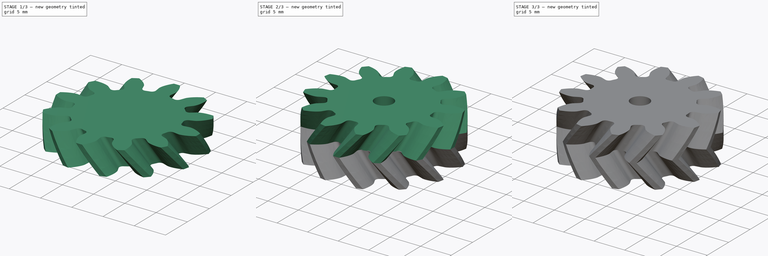
[diagram: build sequence overview — one tinted view per stage of 3, left to right]
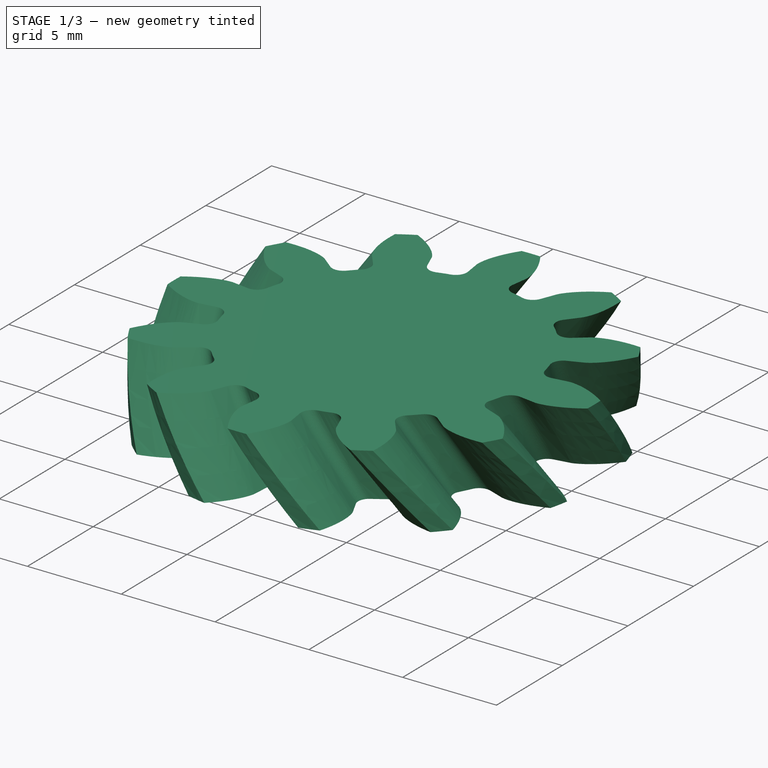
[diagram: stage 1 of 3 — iso view after this stage's code; geometry added in this stage tinted green]
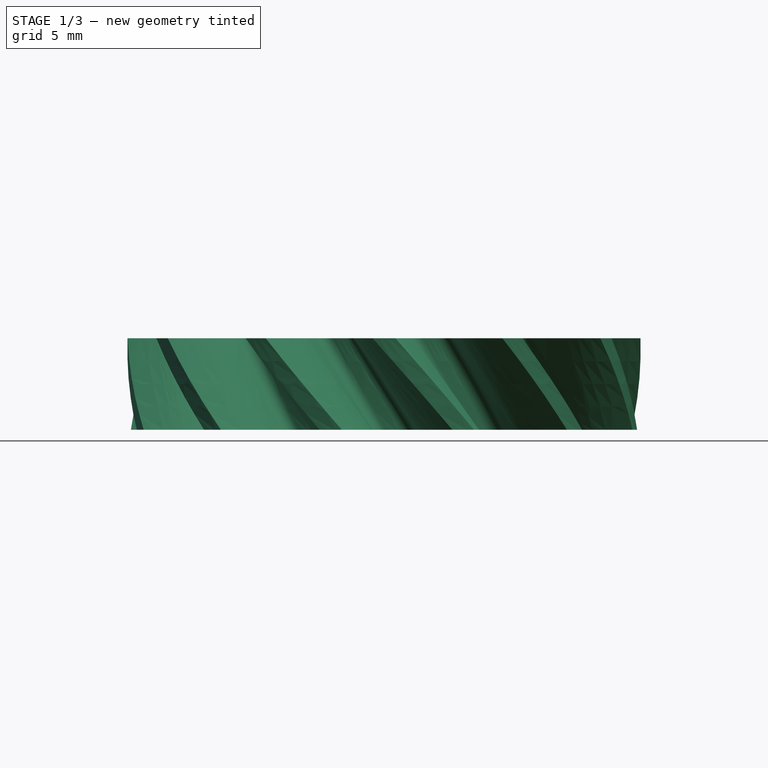
[diagram: stage 1 of 3 — front view after this stage's code; geometry added in this stage tinted green]
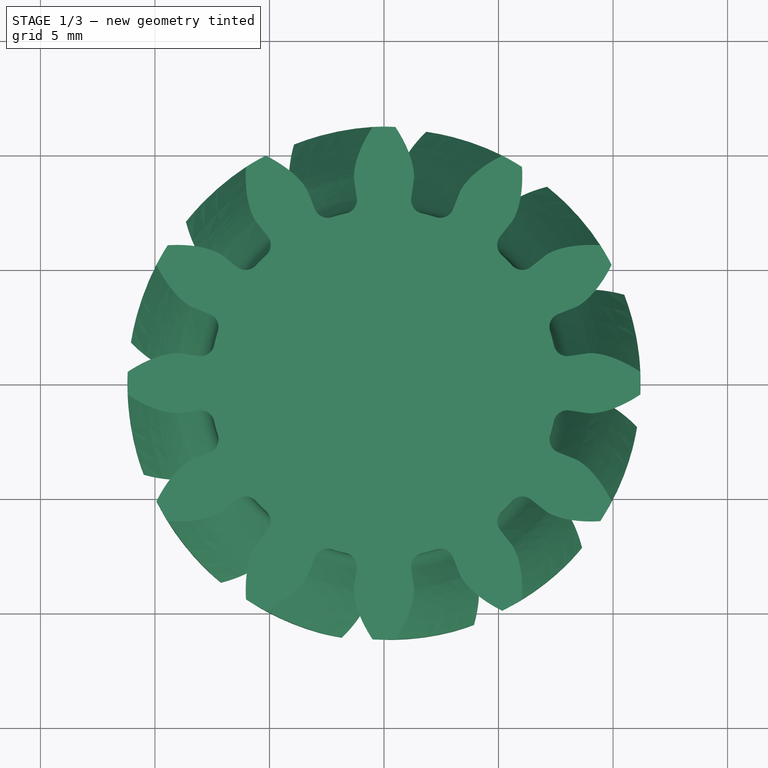
[diagram: stage 1 of 3 — top view after this stage's code; geometry added in this stage tinted green]
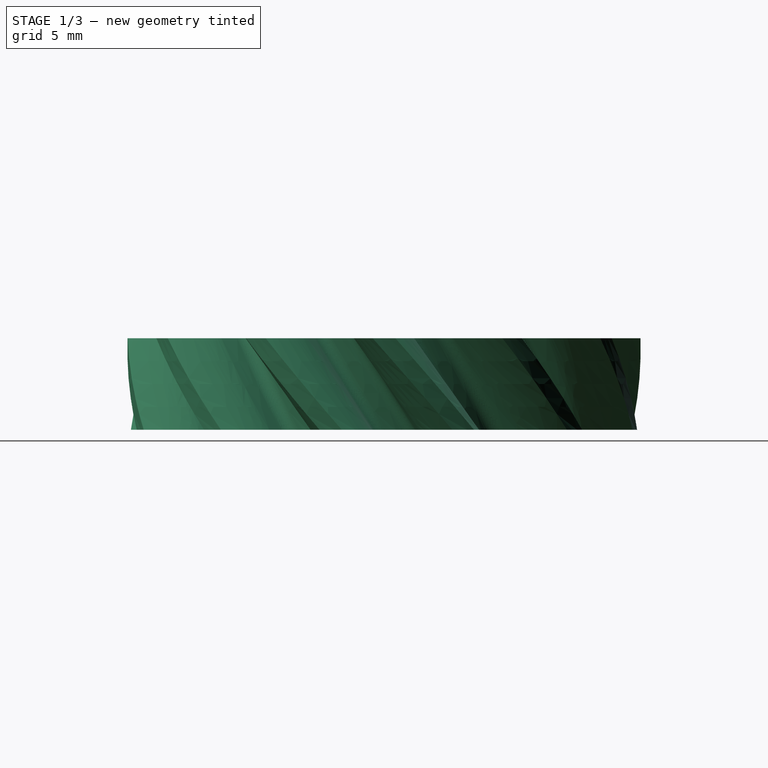
[diagram: stage 1 of 3 — right view after this stage's code; geometry added in this stage tinted green]
FCSTD DOCUMENT  (FreeCAD 0.16R6703 (Git))
Label: Chevron Gear Servo 1mm 12th
License: FreeArt
LicenseURL: http://artlibre.org/licence/lal
objects: Part::Part2DObjectPython×5, Sketcher::SketchObject×3, PartDesign::Pocket×3, Part::Loft×1, Part::Mirroring×1, Part::Fuse×1
note: 17 computed .brp shape members not serialized (recipe doc carries the construction recipe); baked Part::Feature solids carry a one-line shape summary decoded from their .brp

FEATURE [Part::Part2DObjectPython] InvoluteGear  # Draft 2D object (typed FeaturePython)
  ExternalGear = true
  HighPrecision = true
  Modules = 1.6
  NumberOfTeeth = 12
  PressureAngle = 20
FEATURE [Part::Part2DObjectPython] Clone2D  label="Clone of InvoluteGear (2D)"  # Draft 2D object (typed FeaturePython)
  Objects = -> [InvoluteGear]
  Placement = pos=(0,0,1) rot=(0,0,1;0.07854rad)
  Scale = (1,1,1)
FEATURE [Part::Part2DObjectPython] Clone2D001  label="Clone of InvoluteGear (2D)001"  # Draft 2D object (typed FeaturePython)
  Objects = -> [InvoluteGear]
  Placement = pos=(0,0,2) rot=(0,0,1;0.15708rad)
  Scale = (1,1,1)
FEATURE [Part::Part2DObjectPython] Clone2D002  label="Clone of InvoluteGear (2D)002"  # Draft 2D object (typed FeaturePython)
  Objects = -> [InvoluteGear]
  Placement = pos=(0,0,3) rot=(0,0,1;0.235619rad)
  Scale = (1,1,1)
FEATURE [Part::Part2DObjectPython] Clone2D003  label="Clone of InvoluteGear (2D)003"  # Draft 2D object (typed FeaturePython)
  Objects = -> [InvoluteGear]
  Placement = pos=(0,0,4) rot=(0,0,1;0.314159rad)
  Scale = (1,1,1)
FEATURE [Part::Loft] Loft
  Closed = false
  Ruled = false
  Sections = -> [InvoluteGear,Clone2D,Clone2D001,Clone2D002,Clone2D003]
  Solid = true
FEATURE [Part::Mirroring] Part__Mirroring  label="Loft (Mirror #1)"
  Base = (0,0,0)
  Normal = (0,0,1)
  Source = -> Loft
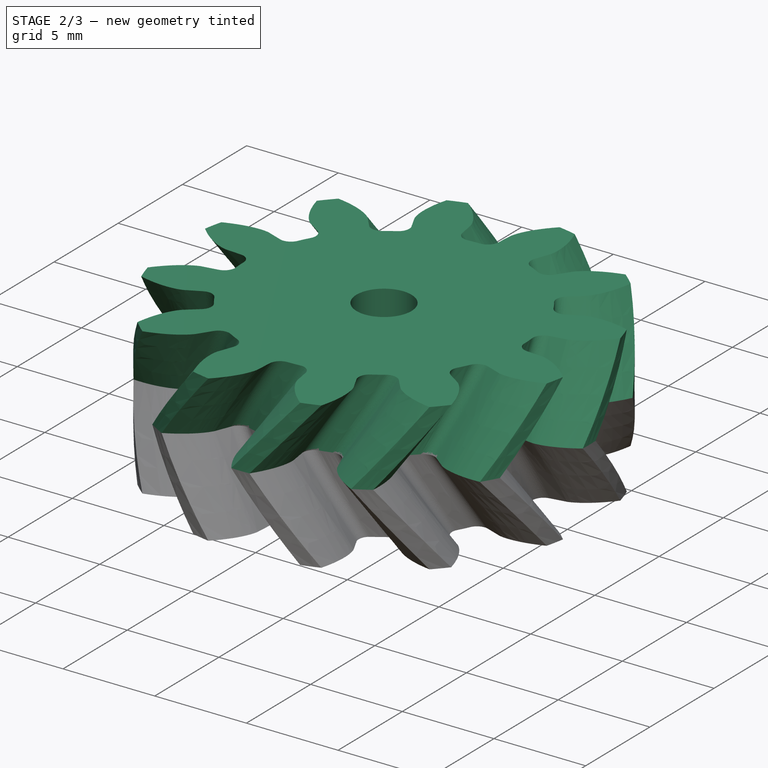
[diagram: stage 2 of 3 — iso view after this stage's code; geometry added in this stage tinted green]
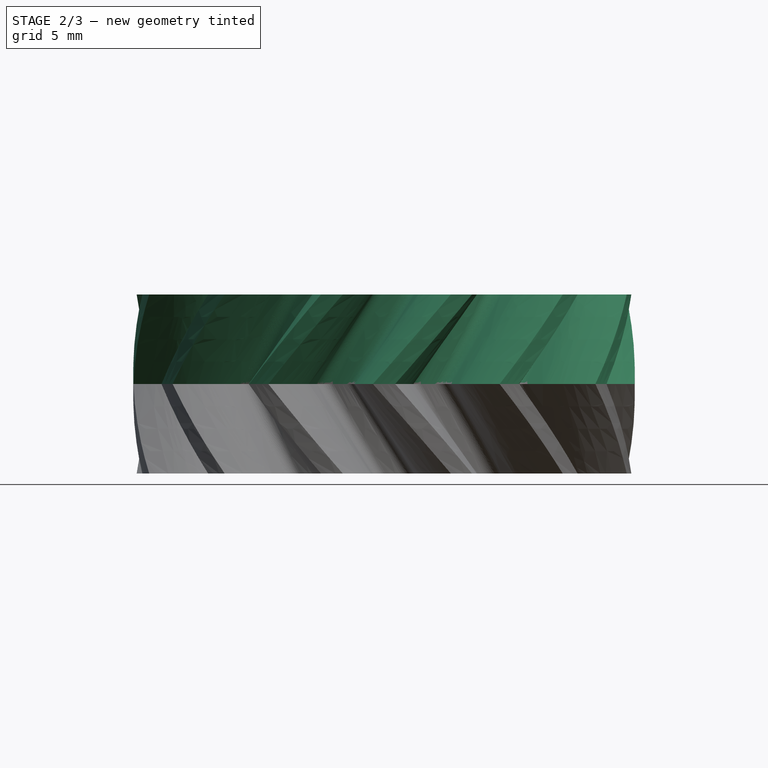
[diagram: stage 2 of 3 — front view after this stage's code; geometry added in this stage tinted green]
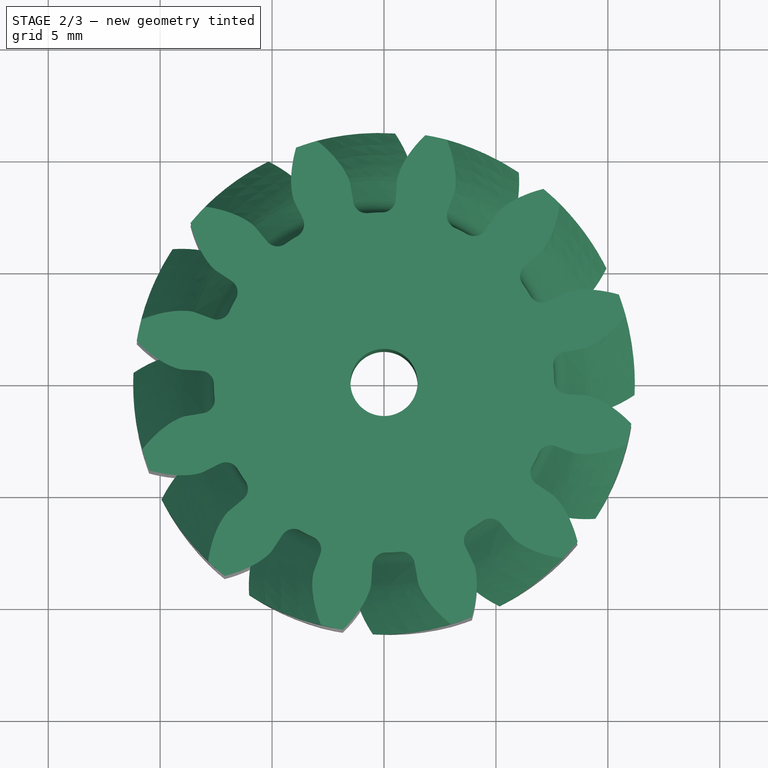
[diagram: stage 2 of 3 — top view after this stage's code; geometry added in this stage tinted green]
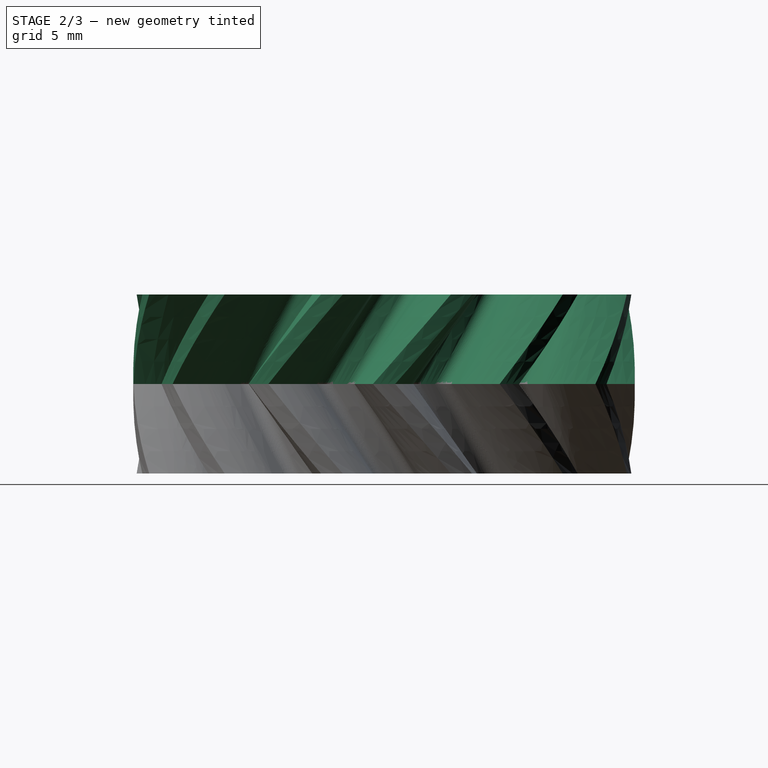
[diagram: stage 2 of 3 — right view after this stage's code; geometry added in this stage tinted green]
FEATURE [Sketcher::SketchObject] Sketch
  Placement = pos=(0,0,4) rot=(0,0,1;0rad)
  Support = -> Loft [Face122]
  sketch-geometry (1):
    g0: Circle CenterX=0 CenterY=0 CenterZ=0 NormalX=0 NormalY=0 NormalZ=1 Radius=1.5
  constraints (2):
    c: Coincident(g0,g-1)
    c: Radius(g0) = 1.5
FEATURE [PartDesign::Pocket] Pocket
  Length = 5
  Sketch = -> Sketch
  Type = 1
FEATURE [Sketcher::SketchObject] Sketch001
  Placement = pos=(0,0,-4) rot=(1,0,0;3.14159rad)
  Support = -> Part__Mirroring [Face122]
  sketch-geometry (1):
    g0: Circle CenterX=0 CenterY=0 CenterZ=0 NormalX=0 NormalY=0 NormalZ=1 Radius=1.5
  constraints (2):
    c: Coincident(g0,g-1)
    c: Radius(g0) = 1.5
FEATURE [PartDesign::Pocket] Pocket001
  Length = 5
  Sketch = -> Sketch001
  Type = 1
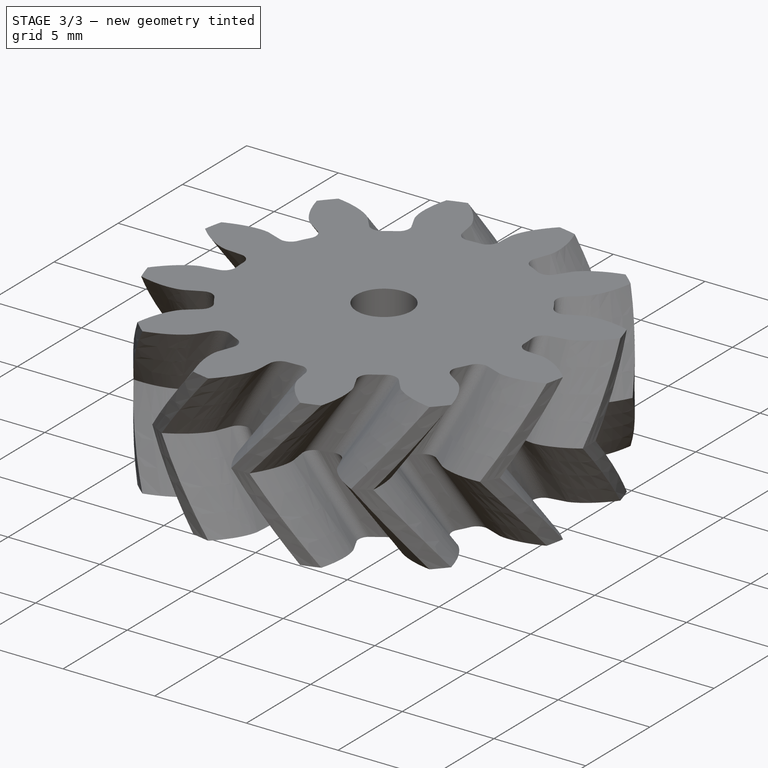
[diagram: stage 3 of 3 — iso view after this stage's code; geometry added in this stage tinted green]
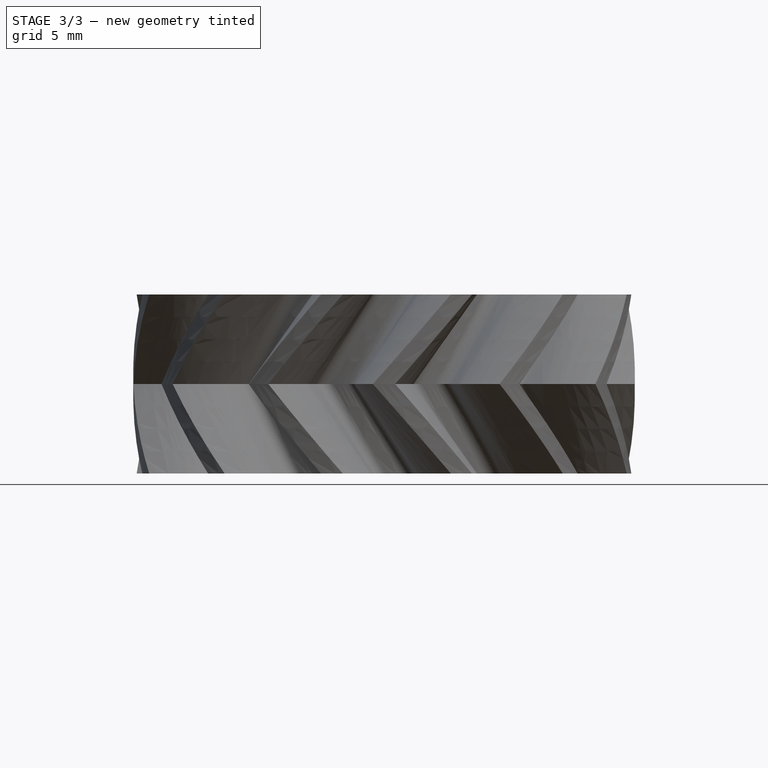
[diagram: stage 3 of 3 — front view after this stage's code; geometry added in this stage tinted green]
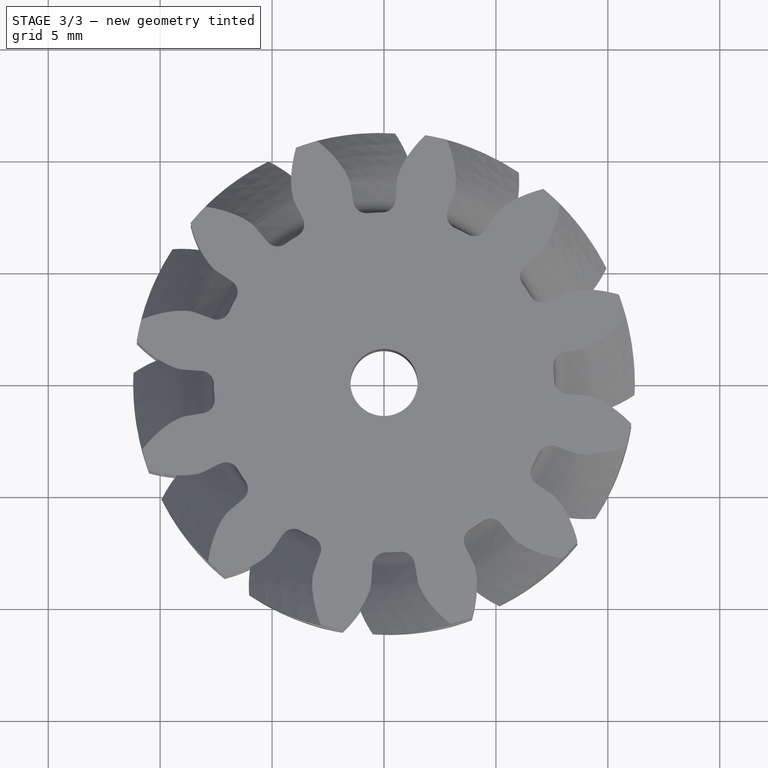
[diagram: stage 3 of 3 — top view after this stage's code; geometry added in this stage tinted green]
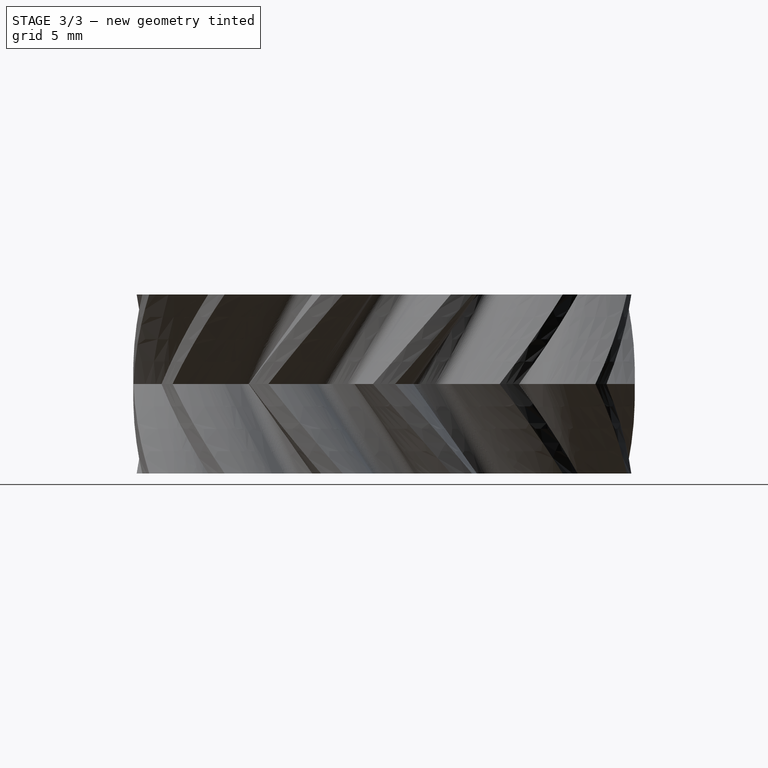
[diagram: stage 3 of 3 — right view after this stage's code; geometry added in this stage tinted green]
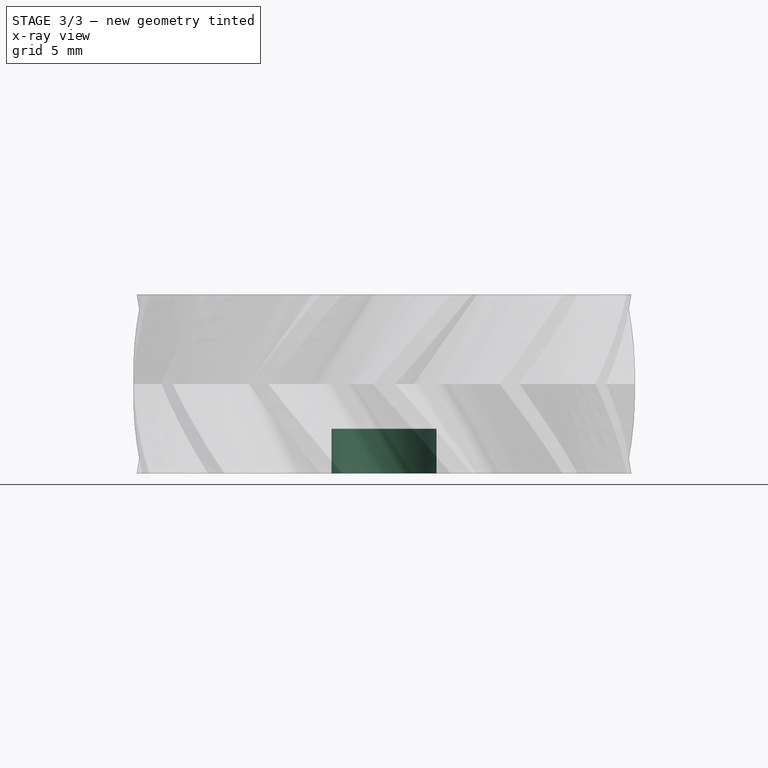
[diagram: stage 3 of 3 — x-ray composite at the front view; earlier geometry ghosted, this stage's added geometry solid]
FEATURE [Part::Fuse] Fusion
  Base = -> Pocket
  Tool = -> Pocket001
FEATURE [Sketcher::SketchObject] Sketch002
  Placement = pos=(0,0,-4) rot=(1,0,0;3.14159rad)
  Support = -> Fusion [Face242]
  sketch-geometry (1):
    g0: Circle CenterX=0 CenterY=0 CenterZ=0 NormalX=0 NormalY=0 NormalZ=1 Radius=2.35
  constraints (2):
    c: Coincident(g0,g-1)
    c: Radius(g0) = 2.35
FEATURE [PartDesign::Pocket] Pocket002
  Length = 2
  Sketch = -> Sketch002
  Type = 0
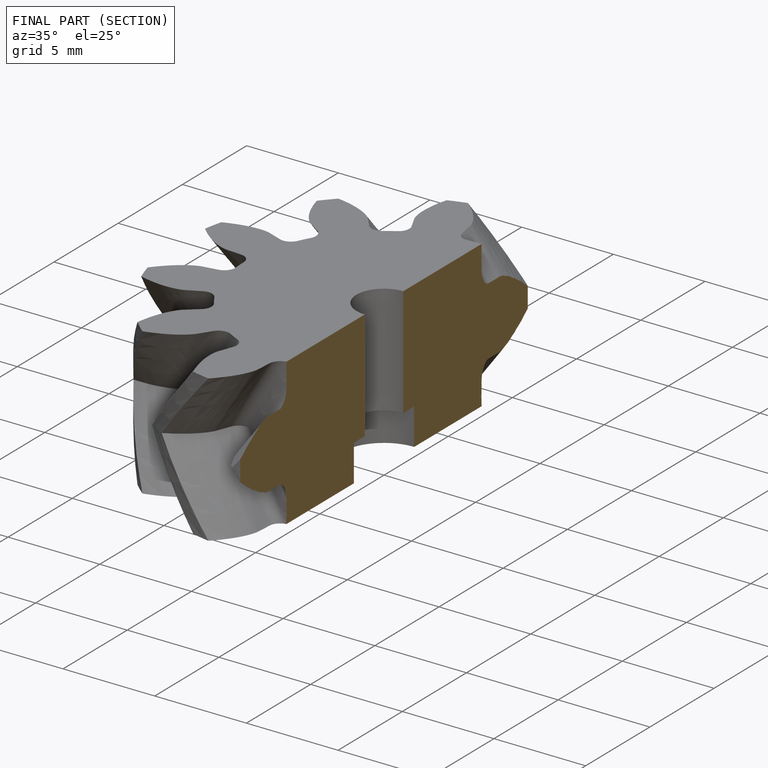
[diagram: finished part — half-section view (interior)]
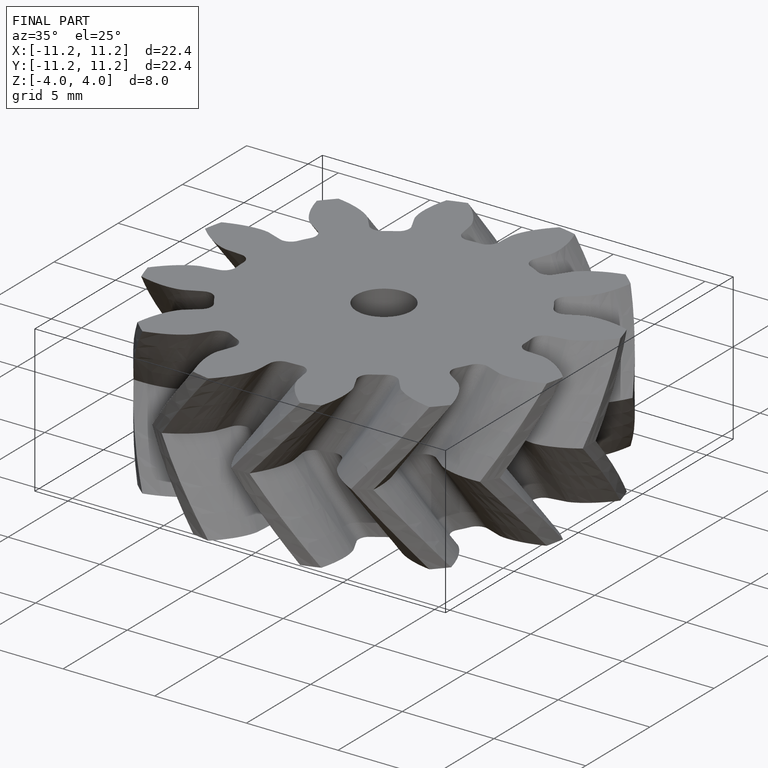
[diagram: finished part — iso view with bounding-box wireframe]
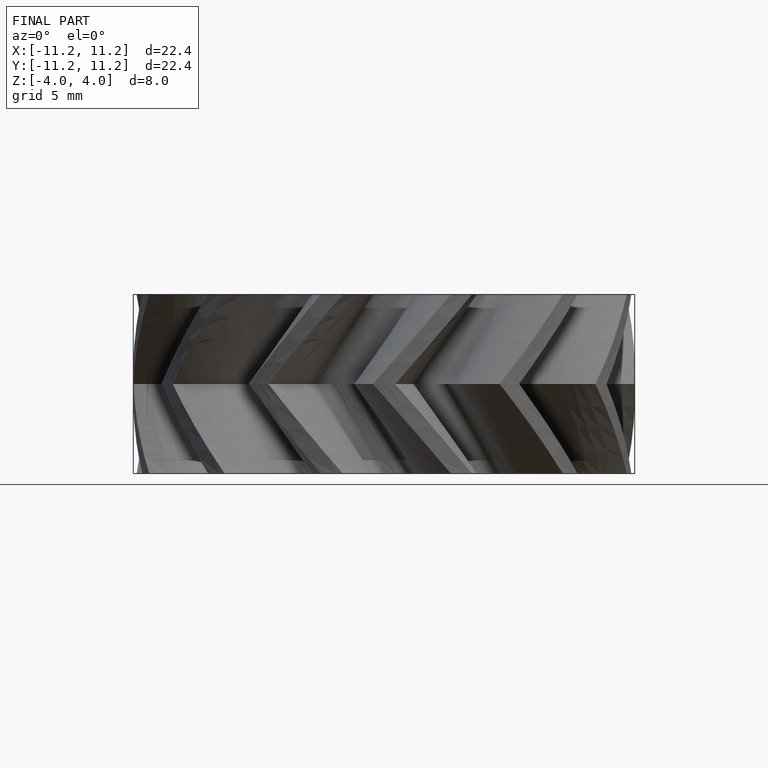
[diagram: finished part — front view with bounding-box wireframe]
